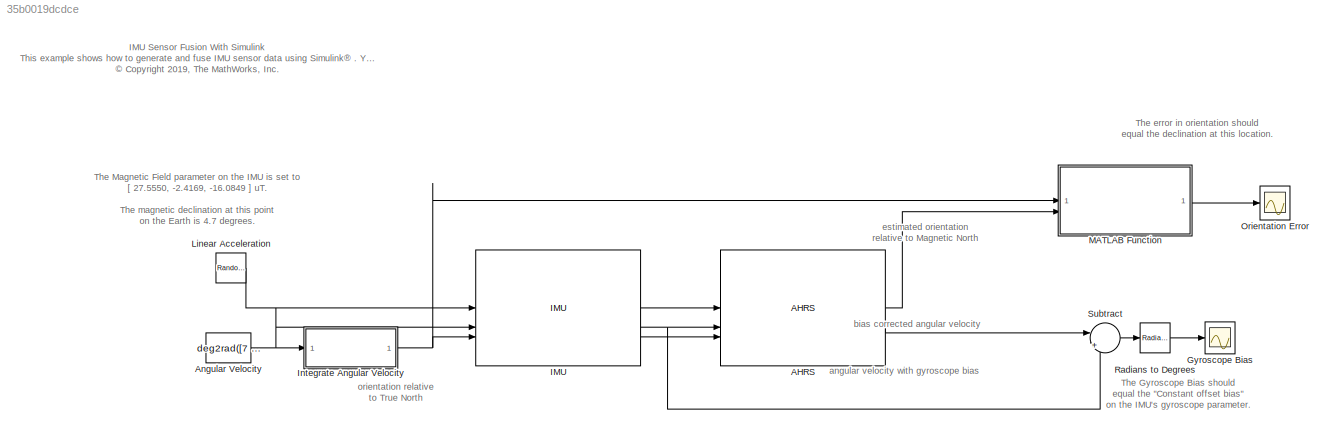
MODEL slx_35b0019dcdce
KIND model
CONFIG AbsTol = auto
CONFIG EnableMultiTasking = off
CONFIG FixedStep = auto
CONFIG MaxStep = auto
CONFIG MinStep = auto
CONFIG RelTol = 1e-3
CONFIG SampleTimeConstraint = Unconstrained
CONFIG SolverName = FixedStepDiscrete
CONFIG StartTime = 0.0
CONFIG StopTime = 1000
WORKSPACE source: mxarray member
WORKSPACE SampleRate = 100
BLOCK [Reference] AHRS  REF=mspfiltlib/AHRS
  SourceBlock = mspfiltlib/AHRS
  SourceType = fusion.simulink.ahrsfilter
BLOCK [Constant] Angular Velocity
  SampleTime = 1/SampleRate
  Value = deg2rad([7 10 5])
  VectorParams1D = off
BLOCK [Scope] Gyroscope Bias
  Floating = off
  NumInputPorts = 1
  ScopeSpecificationString = Simulink.scopes.TimeScopeBlockCfg('CurrentConfiguration', extmgr.ConfigurationSet(extmgr.Configuration('Core','General UI',true),extmgr.Configuration('Core','Source UI',true),extmgr.Configuration('Sources','WiredSimulink',true,'DataLoggingVariableName','ScopeData1'),extmgr.Configuration('Visuals','Time Domain',true,'SerializedDisplays',{struct('MinYLimReal','-3.45781','MaxYLimReal','-3.2176','YLab...<+1562ch>
BLOCK [Reference] IMU  REF=mspsensorlib/IMU
  SourceBlock = mspsensorlib/IMU
  SourceType = fusion.simulink.imuSensor
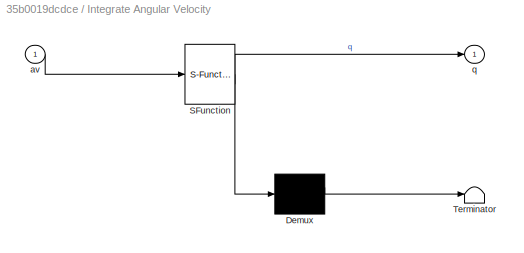
BLOCK [SubSystem] Integrate Angular Velocity
  ErrorFcn = Stateflow.Translate.translate
  PermitHierarchicalResolution = ExplicitOnly
  SFBlockType = MATLAB Function
  TreatAsAtomicUnit = on
BLOCK [Demux] Integrate Angular Velocity/ Demux 
  Outputs = 1
BLOCK [S-Function] Integrate Angular Velocity/ SFunction 
  EnableBusSupport = on
  FunctionName = sf_sfun
  Parameters = rate
  PortCounts = [1 2]
  SFcnIsStateOwnerBlock = off
  SFunctionDeploymentMode = off
  Tag = Stateflow S-Function 2
BLOCK [Terminator] Integrate Angular Velocity/ Terminator 
BLOCK [Inport] Integrate Angular Velocity/av
BLOCK [Outport] Integrate Angular Velocity/q
BLOCK [RandomNumber] Linear Acceleration
  Mean = [0 0 0]
  SampleTime = 1/SampleRate
  VectorParams1D = off
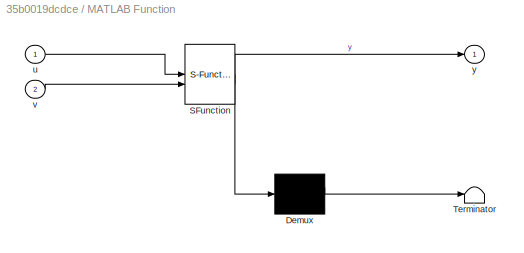
BLOCK [SubSystem] MATLAB Function
  ErrorFcn = Stateflow.Translate.translate
  PermitHierarchicalResolution = ExplicitOnly
  SFBlockType = MATLAB Function
  TreatAsAtomicUnit = on
BLOCK [Demux] MATLAB Function/ Demux 
  Outputs = 1
BLOCK [S-Function] MATLAB Function/ SFunction 
  EnableBusSupport = on
  FunctionName = sf_sfun
  PortCounts = [2 2]
  SFcnIsStateOwnerBlock = off
  SFunctionDeploymentMode = off
  Tag = Stateflow S-Function 1
BLOCK [Terminator] MATLAB Function/ Terminator 
BLOCK [Inport] MATLAB Function/u
BLOCK [Inport] MATLAB Function/v
  Port = 2
BLOCK [Outport] MATLAB Function/y
BLOCK [Scope] Orientation Error
  Floating = off
  NumInputPorts = 1
  ScopeSpecificationString = Simulink.scopes.TimeScopeBlockCfg('CurrentConfiguration', extmgr.ConfigurationSet(extmgr.Configuration('Core','General UI',true),extmgr.Configuration('Core','Source UI',true),extmgr.Configuration('Sources','WiredSimulink',true,'DataLoggingVariableName','ScopeData2'),extmgr.Configuration('Visuals','Time Domain',true,'SerializedDisplays',{struct('MinYLimReal','-2.85679','MaxYLimReal','26.76702','YLa...<+1534ch>
BLOCK [Reference] Radians to Degrees  REF=simulink_extras/Transformations/Radians
to Degrees
  SourceBlock = simulink_extras/Transformations/Radians\nto Degrees
  SourceType = RadiansToDegrees
BLOCK [Sum] Subtract
  Inputs = ||+|-
ANNOTATION (root): IMU Sensor Fusion With Simulink This example shows how to generate and fuse IMU sensor data using Simulink ® . You can accurately model the behavior of an accelerometer, a gyroscope, and a magnetometer and fuse their outputs to compute orientation. <copyright redacted>
ANNOTATION (root): The Gyroscope Bias should equal the "Constant offset bias" on the IMU's gyroscope parameter.
ANNOTATION (root): The Magnetic Field parameter on the IMU is set to [ 27.5550, -2.4169, -16.0849 ] uT. The magnetic declination at this point on the Earth is 4.7 degrees.
ANNOTATION (root): The error in orientation should equal the declination at this location.
ANNOTATION (root): angular velocity with gyroscope bias
ANNOTATION (root): bias corrected angular velocity
ANNOTATION (root): estimated orientation relative to Magnetic North
ANNOTATION (root): orientation relative to True North
LINE AHRS:1 -> MATLAB Function:2
LINE AHRS:2 -> Subtract:1
NET Angular Velocity:1 -> IMU:2, Integrate Angular Velocity:1
LINE IMU:1 -> AHRS:1
NET IMU:2 -> AHRS:2, Subtract:2
LINE IMU:3 -> AHRS:3
NET Integrate Angular Velocity:1 -> IMU:3, MATLAB Function:1
LINE Linear Acceleration:1 -> IMU:1
LINE MATLAB Function:1 -> Orientation Error:1
LINE Radians to Degrees:1 -> Gyroscope Bias:1
LINE Subtract:1 -> Radians to Degrees:1
note: NET lines group one-source signal fan-out (src -> all destinations, sorted); 1:1 wires keep LINE
CHART Integrate Angular Velocity states=1 transitions=1
  STATE_LABEL 'eML_blk_kernel()'
  STATE_LABEL "SCRIPT:\nfunction q = integrateAngVel(av, rate)\n%INTEGRATEANGVEL Integrate angular velocity to a quaternion\n%  Treat Angular Velocity as an incremental rotation vector.\n\n%   <copyright redacted>\n\npersistent orient\nif isempty(orient)\n    % Initial orientation is the identity quaternion.\n    orient = cast(quaternion(1,0,0,0), 'like', av);\nend\n\n% Convert angular velocity to a rotation...<+92ch>"
CHART MATLAB Function states=1 transitions=1
  STATE_LABEL 'eML_blk_kernel()'
  STATE_LABEL 'SCRIPT:\nfunction y = orientationError(u,v)\n%ORIENTATIONERROR Compute the quaternion distance in degrees\n\n%   <copyright redacted>\n\ny = rad2deg(dist(quaternion(u), quaternion(v)));\n'
CHART  states=0 transitions=0
CHART  states=0 transitions=0
